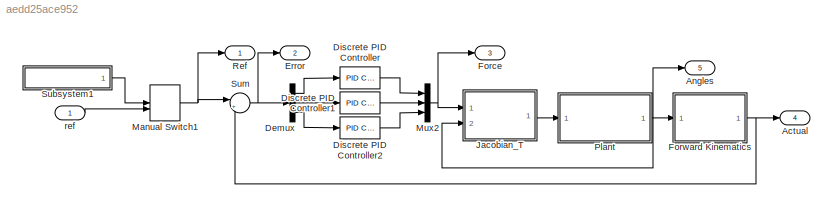
MODEL slx_aedd25ace952
KIND model
CONFIG AbsTol = auto
CONFIG FixedStep = 1e-5
CONFIG MaxStep = auto
CONFIG MinStep = auto
CONFIG RelTol = 1e-3
CONFIG SampleTimeConstraint = Unconstrained
CONFIG Solver = ode4
CONFIG SolverMode = Auto
CONFIG SolverName = ode4
CONFIG StartTime = 0.0
CONFIG StopTime = 10
BLOCK [Outport] Actual
  IconDisplay = Port number
  Port = 4
BLOCK [Outport] Angles
  IconDisplay = Port number
  Port = 5
BLOCK [Demux] Demux
  DisplayOption = bar
  Outputs = 3
  Ports = [1, 3]
BLOCK [Reference] Discrete PID Controller  REF=simulink/Continuous/PID Controller
  Ports = [1, 1]
  SourceBlock = simulink/Continuous/PID Controller
  SourceType = PID 1dof
BLOCK [Reference] Discrete PID Controller1  REF=simulink/Continuous/PID Controller
  Ports = [1, 1]
  SourceBlock = simulink/Continuous/PID Controller
  SourceType = PID 1dof
BLOCK [Reference] Discrete PID Controller2  REF=simulink/Continuous/PID Controller
  Ports = [1, 1]
  SourceBlock = simulink/Continuous/PID Controller
  SourceType = PID 1dof
BLOCK [Outport] Error
  IconDisplay = Port number
  Port = 2
BLOCK [Outport] Force
  IconDisplay = Port number
  Port = 3
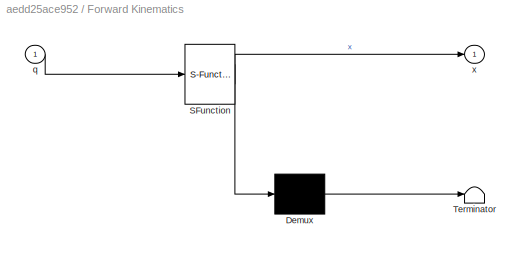
BLOCK [SubSystem] Forward Kinematics
  ErrorFcn = Stateflow.Translate.translate
  PermitHierarchicalResolution = ExplicitOnly
  Ports = [1, 1]
  RequestExecContextInheritance = off
  SFBlockType = MATLAB Function
  TreatAsAtomicUnit = on
  Variant = off
BLOCK [Demux] Forward Kinematics/ Demux 
  Outputs = 1
  Ports = [1, 1]
BLOCK [S-Function] Forward Kinematics/ SFunction 
  EnableBusSupport = on
  FunctionName = sf_sfun
  PortCounts = [1 2]
  Ports = [1, 2]
  SFunctionDeploymentMode = off
  Tag = Stateflow S-Function control_model 1
BLOCK [Terminator] Forward Kinematics/ Terminator 
BLOCK [Inport] Forward Kinematics/q
  IconDisplay = Port number
BLOCK [Outport] Forward Kinematics/x
  IconDisplay = Port number
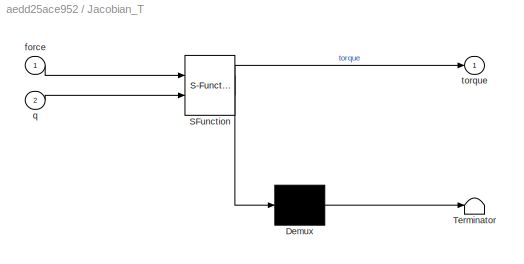
BLOCK [SubSystem] Jacobian_T
  ErrorFcn = Stateflow.Translate.translate
  PermitHierarchicalResolution = ExplicitOnly
  Ports = [2, 1]
  RequestExecContextInheritance = off
  SFBlockType = MATLAB Function
  TreatAsAtomicUnit = on
  Variant = off
BLOCK [Demux] Jacobian_T/ Demux 
  Outputs = 1
  Ports = [1, 1]
BLOCK [S-Function] Jacobian_T/ SFunction 
  EnableBusSupport = on
  FunctionName = sf_sfun
  PortCounts = [2 2]
  Ports = [2, 2]
  SFunctionDeploymentMode = off
  Tag = Stateflow S-Function control_model 4
BLOCK [Terminator] Jacobian_T/ Terminator 
BLOCK [Inport] Jacobian_T/force
  IconDisplay = Port number
BLOCK [Inport] Jacobian_T/q
  IconDisplay = Port number
  Port = 2
BLOCK [Outport] Jacobian_T/torque
  IconDisplay = Port number
BLOCK [ManualSwitch] Manual Switch1
  CurrentSetting = 0
BLOCK [Mux] Mux2
  DisplayOption = bar
  Inputs = 3
  Ports = [3, 1]
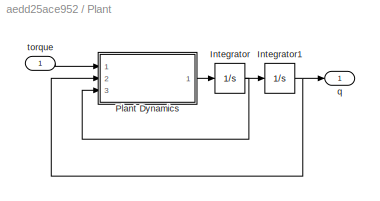
BLOCK [SubSystem] Plant
  Ports = [1, 1]
  RequestExecContextInheritance = off
  Variant = off
BLOCK [Integrator] Plant/Integrator
  InitialCondition = [0.0; 0.0; 0.0]
  Ports = [1, 1]
BLOCK [Integrator] Plant/Integrator1
  InitialCondition = [0.0; 0.0; 0.0]
  Ports = [1, 1]
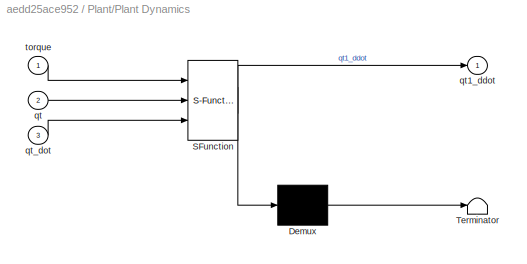
BLOCK [SubSystem] Plant/Plant Dynamics
  ErrorFcn = Stateflow.Translate.translate
  PermitHierarchicalResolution = ExplicitOnly
  Ports = [3, 1]
  RequestExecContextInheritance = off
  SFBlockType = MATLAB Function
  TreatAsAtomicUnit = on
  Variant = off
BLOCK [Demux] Plant/Plant Dynamics/ Demux 
  Outputs = 1
  Ports = [1, 1]
BLOCK [S-Function] Plant/Plant Dynamics/ SFunction 
  EnableBusSupport = on
  FunctionName = sf_sfun
  PortCounts = [3 2]
  Ports = [3, 2]
  SFunctionDeploymentMode = off
  Tag = Stateflow S-Function control_model 2
BLOCK [Terminator] Plant/Plant Dynamics/ Terminator 
BLOCK [Inport] Plant/Plant Dynamics/qt
  IconDisplay = Port number
  Port = 2
BLOCK [Outport] Plant/Plant Dynamics/qt1_ddot
  IconDisplay = Port number
BLOCK [Inport] Plant/Plant Dynamics/qt_dot
  IconDisplay = Port number
  Port = 3
BLOCK [Inport] Plant/Plant Dynamics/torque
  IconDisplay = Port number
BLOCK [Outport] Plant/q
  IconDisplay = Port number
BLOCK [Inport] Plant/torque
  IconDisplay = Port number
BLOCK [Outport] Ref
  IconDisplay = Port number
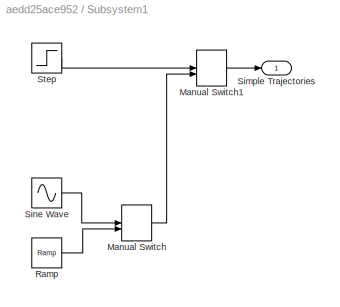
BLOCK [SubSystem] Subsystem1
  Ports = [0, 1]
  RequestExecContextInheritance = off
  Variant = off
BLOCK [ManualSwitch] Subsystem1/Manual Switch
  CurrentSetting = 0
BLOCK [ManualSwitch] Subsystem1/Manual Switch1
BLOCK [Reference] Subsystem1/Ramp  REF=simulink/Sources/Ramp
  Ports = [0, 1]
  SourceBlock = simulink/Sources/Ramp
  SourceType = Ramp
BLOCK [Outport] Subsystem1/Simple Trajectories
  IconDisplay = Port number
BLOCK [Sin] Subsystem1/Sine Wave
  Amplitude = [0.01; 0.01; 0.01]
  Phase = [0; pi/8; pi/4]
  Ports = [0, 1]
  SampleTime = 1e-5
  Samples = 1e5
  SineType = Sample based
  VectorParams1D = off
BLOCK [Step] Subsystem1/Step
  After = [0.001; 0.001; 0.001]
  Before = [0; 0.; 0.]
  SampleTime = 0
  VectorParams1D = off
BLOCK [Sum] Sum
  IconShape = round
  InputSameDT = off
  Inputs = |+-
  OutDataTypeStr = Inherit: Inherit via internal rule
  Ports = [2, 1]
  SaturateOnIntegerOverflow = off
BLOCK [Inport] ref
  IconDisplay = Port number
  Interpolate = off
  PortDimensions = 3
LINE Demux:1 -> Discrete PID Controller:1
LINE Demux:2 -> Discrete PID Controller1:1
LINE Demux:3 -> Discrete PID Controller2:1
LINE Discrete PID Controller1:1 -> Mux2:2
LINE Discrete PID Controller2:1 -> Mux2:3
LINE Discrete PID Controller:1 -> Mux2:1
NET Forward Kinematics:1 -> Actual:1, Sum:2
LINE Jacobian_T:1 -> Plant:1
NET Manual Switch1:1 -> Ref:1, Sum:1
NET Mux2:1 -> Force:1, Jacobian_T:1
NET Plant/Integrator1:1 -> Plant/Plant Dynamics:2, Plant/q:1
NET Plant/Integrator:1 -> Plant/Integrator1:1, Plant/Plant Dynamics:3
LINE Plant/Plant Dynamics:1 -> Plant/Integrator:1
LINE Plant/torque:1 -> Plant/Plant Dynamics:1
NET Plant:1 -> Angles:1, Forward Kinematics:1, Jacobian_T:2
LINE Subsystem1/Manual Switch1:1 -> Subsystem1/Simple Trajectories:1
LINE Subsystem1/Manual Switch:1 -> Subsystem1/Manual Switch1:2
LINE Subsystem1/Ramp:1 -> Subsystem1/Manual Switch:2
LINE Subsystem1/Sine Wave:1 -> Subsystem1/Manual Switch:1
LINE Subsystem1/Step:1 -> Subsystem1/Manual Switch1:1
LINE Subsystem1:1 -> Manual Switch1:1
NET Sum:1 -> Demux:1, Error:1
LINE ref:1 -> Manual Switch1:2
note: NET lines group one-source signal fan-out (src -> all destinations, sorted); 1:1 wires keep LINE
CHART Forward Kinematics states=1 transitions=1
  STATE_LABEL 'eML_blk_kernel()'
  STATE_LABEL 'SCRIPT:\nfunction x = fcn(q)\n%#codegen\n\nq1 = q(1); q2 = q(2); q3 = q(3);\nl1 = 0.215;%new\nl2 = 0.170;\n\nx1 = sin(q1)*(l1*cos(q2)+l2*sin(q3));\nx2 = l2 - l2*cos(q3) + l1*sin(q2);\nx3 = -l1 + cos(q1)*(l1*cos(q2)+l2*sin(q3));\n\nx = [x1; x2; x3];'
CHART Plant/Plant Dynamics states=1 transitions=1
  STATE_LABEL 'eML_blk_kernel()'
  STATE_LABEL 'SCRIPT:\nfunction qt1_ddot = fcn(torque, qt, qt_dot)\n%#codegen\n\nq1 = qt(1); q2 = qt(2); q3 = qt(3); \nq1d = qt_dot(1); q2d = qt_dot(2); q3d = qt_dot(3); \n\n%% phantom premium 1.5 parameters\nma = 0.0202;%new\nmc = 0.0249;%new\nmbe = 0.2359;%new\nmdf = 0.1906;\nl1 = 0.215;%new\nl2 = 0.170;\nl3 = 0.0325;\nl5 = -36.8e-3;\nl6 = 52.7e-3;\ng = 9.81;\n\n%% moment of inertia params\nIaxx = 0.4864e-4;\nIayy = 0.001843e-4;\n...<+1593ch>'
CHART Jacobian_T states=1 transitions=1
  STATE_LABEL 'eML_blk_kernel()'
  STATE_LABEL 'SCRIPT:\nfunction torque = fcn(force, q)\n%#codegen\n\nq1 = q(1); q2 = q(2); q3 = q(3);\nl1 = 0.215;%new\nl2 = 0.170;\n\nJ11 = cos(q1)*(l1*cos(q2)+l2*sin(q3));\nJ12 = -l1*sin(q1)*sin(q2);\nJ13 = l2*sin(q1)*cos(q3);\nJ21 = 0;\nJ22 = l1*cos(q2);\nJ23 = l2*sin(q3);\nJ31 = -sin(q1)*(l1*cos(q2)+l2*sin(q3));\nJ32 = -l1*cos(q1)*sin(q2);\nJ33 = l2*cos(q1)*cos(q3);\n\nJ = [J11, J12, J13; J21, J22, J23; J31, J32, J33];\n\ntorq...<+14ch>'
